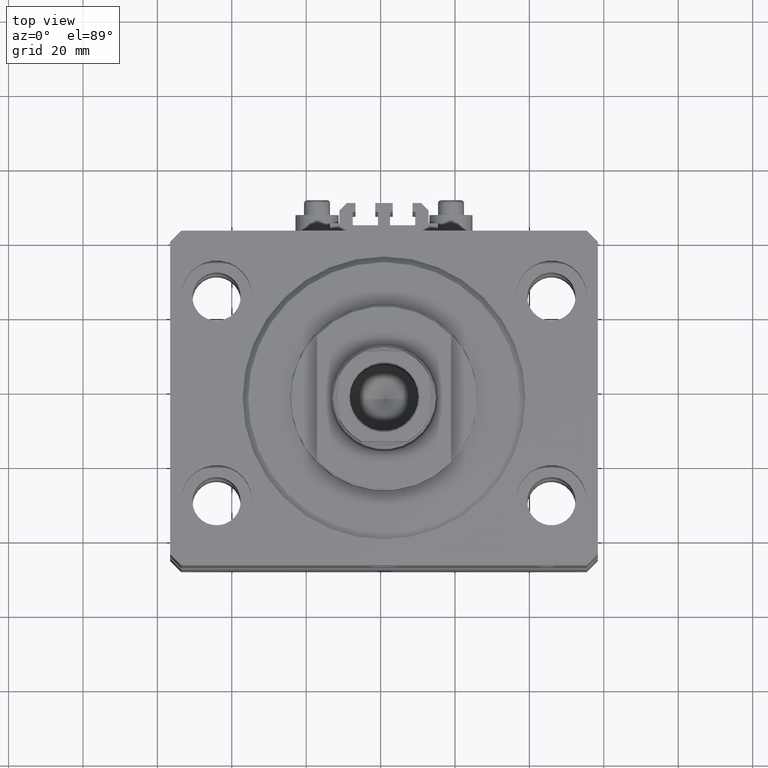
[diagram: clean part render]
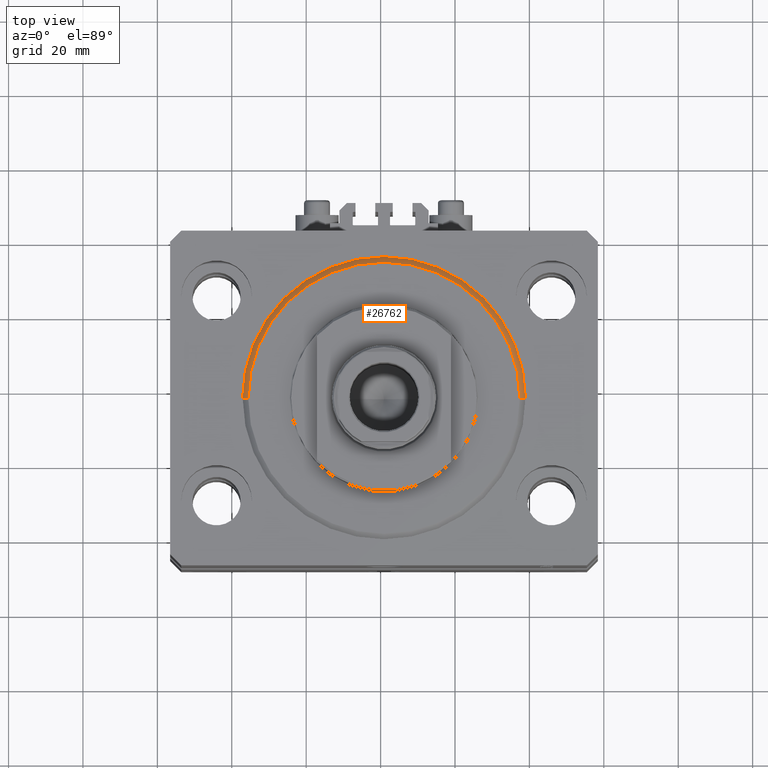
[diagram: same view with one face highlighted and labeled with its STEP entity id]
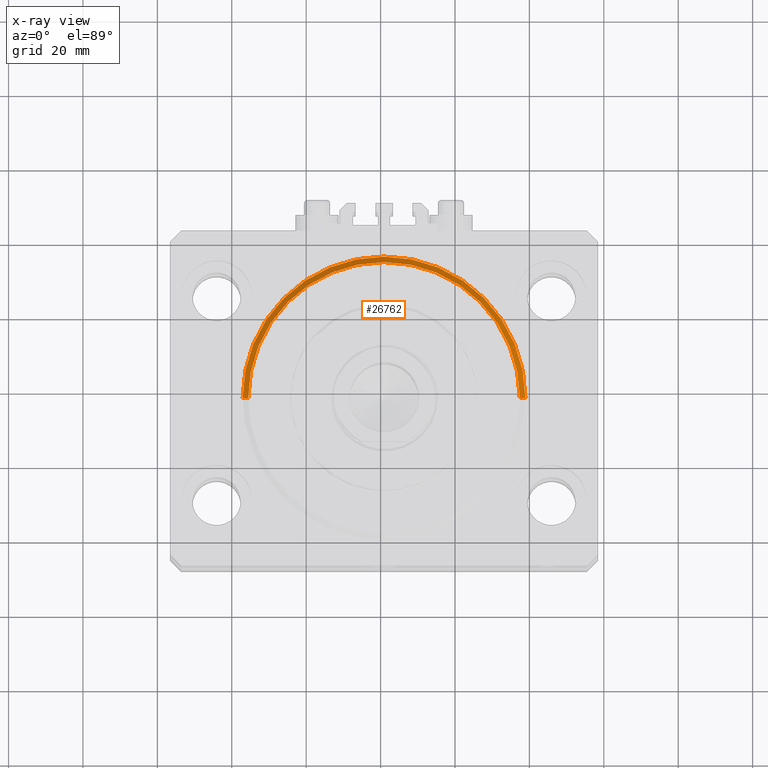
[diagram: x-ray of the same camera — body ghosted, the highlighted face saturated]
A machine part, top view. The second image highlights one B-rep face of the part: STEP entity #26762.
The next image is the same camera in x-ray: the body ghosted, the highlighted face saturated — about 0% of this face is hidden behind the body in this view.
In plain terms, the highlighted conical surface has half-angle 45 deg.
Its self-contained STEP definition (entity closure, byte-faithful):
#716 = DIRECTION ( 'NONE',  ( -0.7071067811865491270, 8.659560562354953812E-17, 0.7071067811865459074 ) ) ;
#807 = CARTESIAN_POINT ( 'NONE',  ( 38.00000000000000000, 4.653657836759941941E-15, 1.499999999999994449 ) ) ;
#2250 = EDGE_CURVE ( 'NONE', #33239, #17013, #15981, .T. ) ;
#2786 = CARTESIAN_POINT ( 'NONE',  ( -36.50000000000000000, 4.561809326823889791E-15, 0.000000000000000000 ) ) ;
#3267 = EDGE_LOOP ( 'NONE', ( #32161, #9231, #12529, #38787 ) ) ;
#3385 = CARTESIAN_POINT ( 'NONE',  ( 0.000000000000000000, 0.000000000000000000, 0.000000000000000000 ) ) ;
#4870 = CARTESIAN_POINT ( 'NONE',  ( -38.00000000000000000, 4.653657836759941941E-15, 1.499999999999994449 ) ) ;
#7402 = CONICAL_SURFACE ( 'NONE', #14486, 38.00000000000000000, 0.7853981633974506105 ) ;
#9231 = ORIENTED_EDGE ( 'NONE', *, *, #33099, .T. ) ;
#9793 = AXIS2_PLACEMENT_3D ( 'NONE', #3385, #18418, #29260 ) ;
#12529 = ORIENTED_EDGE ( 'NONE', *, *, #31462, .F. ) ;
#14486 = AXIS2_PLACEMENT_3D ( 'NONE', #46429, #38084, #30465 ) ;
#15637 = CARTESIAN_POINT ( 'NONE',  ( -38.00000000000000000, 0.000000000000000000, 1.499999999999994449 ) ) ;
#15706 = VERTEX_POINT ( 'NONE', #15637 ) ;
#15981 = LINE ( 'NONE', #19192, #48425 ) ;
#17013 = VERTEX_POINT ( 'NONE', #807 ) ;
#18418 = DIRECTION ( 'NONE',  ( -0.000000000000000000, -0.000000000000000000, -1.000000000000000000 ) ) ;
#18561 = CIRCLE ( 'NONE', #37428, 38.00000000000000000 ) ;
#19192 = CARTESIAN_POINT ( 'NONE',  ( 38.00000000000000000, 0.000000000000000000, 1.499999999999994449 ) ) ;
#19670 = LINE ( 'NONE', #4870, #30401 ) ;
#19775 = DIRECTION ( 'NONE',  ( -0.000000000000000000, -0.000000000000000000, 1.000000000000000000 ) ) ;
#25402 = CARTESIAN_POINT ( 'NONE',  ( 36.50000000000000000, 0.000000000000000000, 0.000000000000000000 ) ) ;
#26762 = ADVANCED_FACE ( 'NONE', ( #48692 ), #7402, .T. ) ;
#28112 = EDGE_CURVE ( 'NONE', #29508, #33239, #35724, .T. ) ;
#29260 = DIRECTION ( 'NONE',  ( 1.000000000000000000, 0.000000000000000000, 0.000000000000000000 ) ) ;
#29508 = VERTEX_POINT ( 'NONE', #2786 ) ;
#30401 = VECTOR ( 'NONE', #716, 1000.000000000000114 ) ;
#30465 = DIRECTION ( 'NONE',  ( 1.000000000000000000, 0.000000000000000000, 0.000000000000000000 ) ) ;
#31089 = DIRECTION ( 'NONE',  ( 1.000000000000000000, 0.000000000000000000, 0.000000000000000000 ) ) ;
#31462 = EDGE_CURVE ( 'NONE', #17013, #15706, #18561, .T. ) ;
#32161 = ORIENTED_EDGE ( 'NONE', *, *, #28112, .F. ) ;
#33099 = EDGE_CURVE ( 'NONE', #29508, #15706, #19670, .T. ) ;
#33239 = VERTEX_POINT ( 'NONE', #25402 ) ;
#35724 = CIRCLE ( 'NONE', #9793, 36.50000000000000000 ) ;
#37428 = AXIS2_PLACEMENT_3D ( 'NONE', #42890, #19775, #31089 ) ;
#38084 = DIRECTION ( 'NONE',  ( -0.000000000000000000, -0.000000000000000000, 1.000000000000000000 ) ) ;
#38617 = DIRECTION ( 'NONE',  ( 0.7071067811865491270, 0.000000000000000000, 0.7071067811865459074 ) ) ;
#38787 = ORIENTED_EDGE ( 'NONE', *, *, #2250, .F. ) ;
#42890 = CARTESIAN_POINT ( 'NONE',  ( 0.000000000000000000, 0.000000000000000000, 1.499999999999994449 ) ) ;
#46429 = CARTESIAN_POINT ( 'NONE',  ( 0.000000000000000000, 0.000000000000000000, 1.499999999999994449 ) ) ;
#48425 = VECTOR ( 'NONE', #38617, 1000.000000000000114 ) ;
#48692 = FACE_OUTER_BOUND ( 'NONE', #3267, .T. ) ;